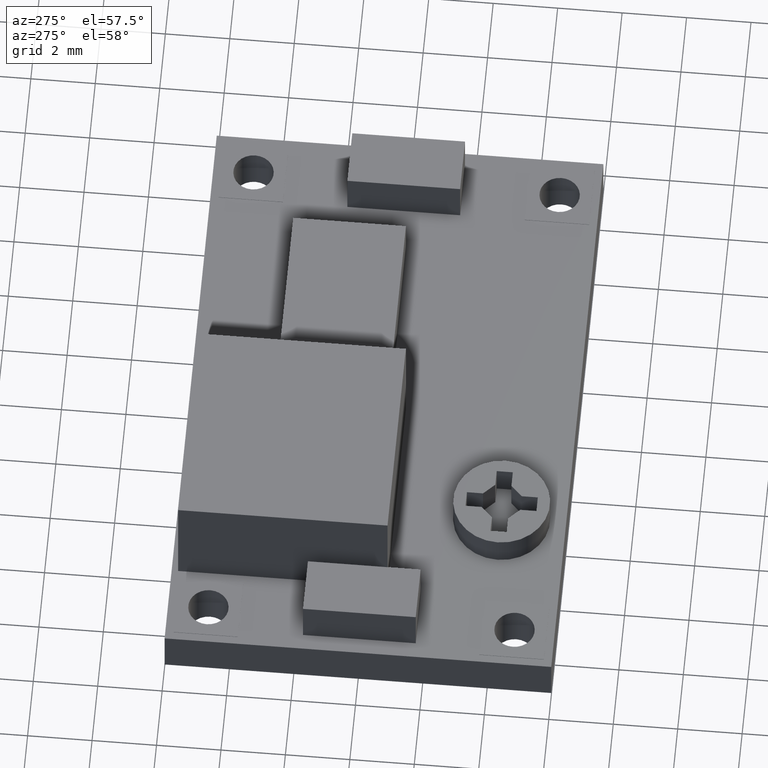
[diagram: clean part render]
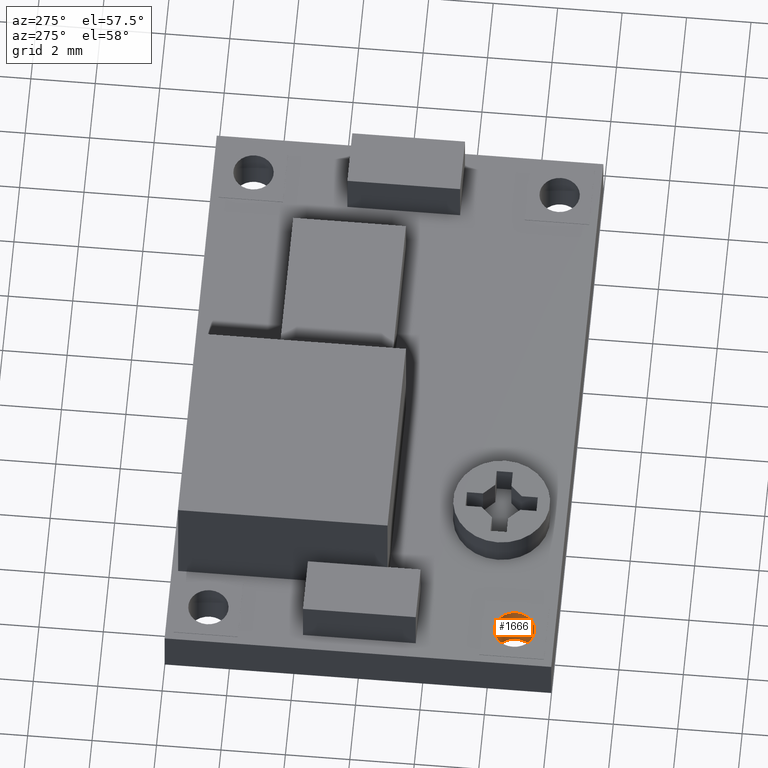
[diagram: same view with one face highlighted and labeled with its STEP entity id]
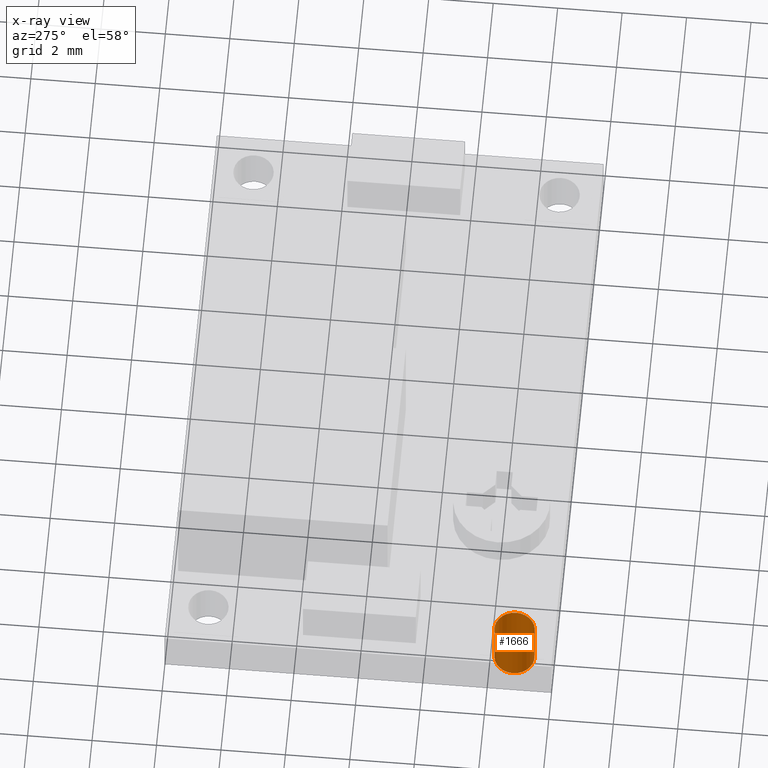
[diagram: x-ray of the same camera — body ghosted, the highlighted face saturated]
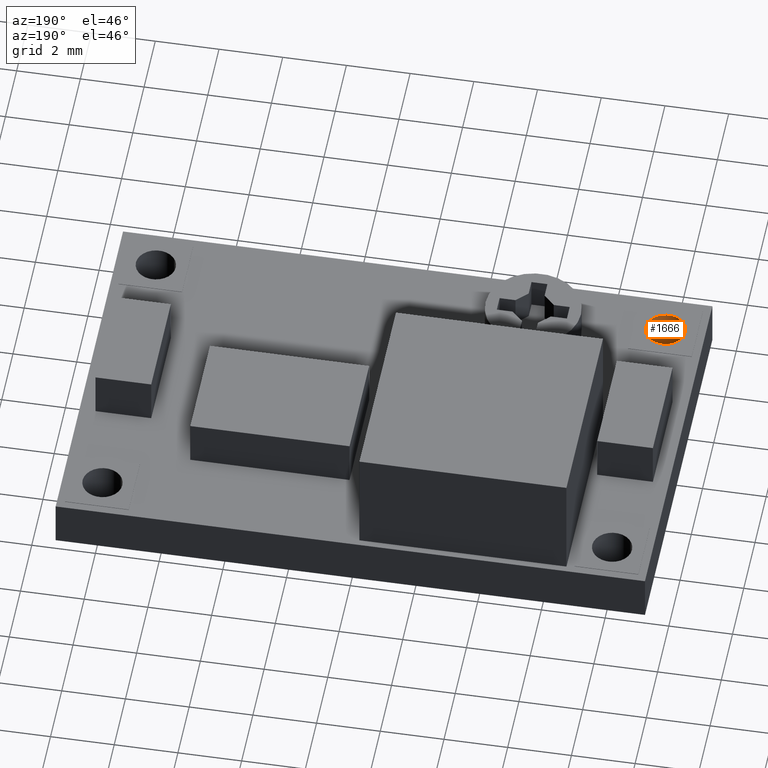
[diagram: same view with one face highlighted and labeled with its STEP entity id]
A machine part, auxiliary view. The second image highlights one B-rep face of the part: STEP entity #1666.
The next image is the same camera in x-ray: the body ghosted, the highlighted face saturated — about 0% of this face is hidden behind the body in this view.
A second angle (auxiliary view) of the same face is appended — the face is thin or edge-on in the first view.
In plain terms, the highlighted cylindrical surface (bore or boss wall) has radius 0.625 mm, axis along (0, -0, 1).
Its self-contained STEP definition (entity closure, byte-faithful):
#40=CIRCLE('',#1774,0.625);
#41=CIRCLE('',#1775,0.625);
#48=CYLINDRICAL_SURFACE('',#1773,0.625);
#71=FACE_OUTER_BOUND('',#161,.T.);
#161=EDGE_LOOP('',(#1139,#1140,#1141,#1142));
#301=LINE('',#2372,#510);
#510=VECTOR('',#1952,0.625);
#705=VERTEX_POINT('',#2369);
#706=VERTEX_POINT('',#2371);
#869=EDGE_CURVE('',#705,#705,#40,.T.);
#870=EDGE_CURVE('',#705,#706,#301,.T.);
#871=EDGE_CURVE('',#706,#706,#41,.T.);
#1139=ORIENTED_EDGE('',*,*,#869,.F.);
#1140=ORIENTED_EDGE('',*,*,#870,.T.);
#1141=ORIENTED_EDGE('',*,*,#871,.F.);
#1142=ORIENTED_EDGE('',*,*,#870,.F.);
#1666=ADVANCED_FACE('',(#71),#48,.F.);
#1773=AXIS2_PLACEMENT_3D('',#2368,#1948,#1949);
#1774=AXIS2_PLACEMENT_3D('',#2370,#1950,#1951);
#1775=AXIS2_PLACEMENT_3D('',#2373,#1953,#1954);
#1948=DIRECTION('center_axis',(0.,-2.22044604925031E-16,1.));
#1949=DIRECTION('ref_axis',(1.,0.,0.));
#1950=DIRECTION('center_axis',(0.,-2.22044604925031E-16,1.));
#1951=DIRECTION('ref_axis',(1.,0.,0.));
#1952=DIRECTION('',(0.,-2.22044604925031E-16,1.));
#1953=DIRECTION('center_axis',(0.,2.22044604925031E-16,-1.));
#1954=DIRECTION('ref_axis',(1.,0.,0.));
#2368=CARTESIAN_POINT('Origin',(-8.,-10.76,-27.0930515410902));
#2369=CARTESIAN_POINT('',(-8.625,-10.76,-6.));
#2370=CARTESIAN_POINT('Origin',(-8.,-10.76,-6.));
#2371=CARTESIAN_POINT('',(-8.625,-10.76,-4.48));
#2372=CARTESIAN_POINT('',(-8.625,-10.76,-27.0930515410902));
#2373=CARTESIAN_POINT('Origin',(-8.,-10.76,-4.48));